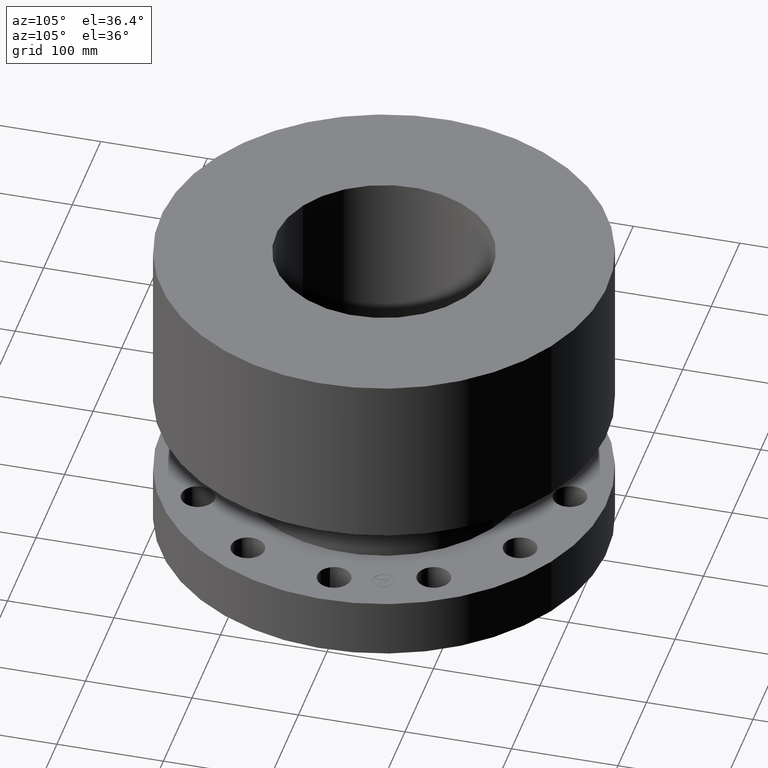
[diagram: clean part render]
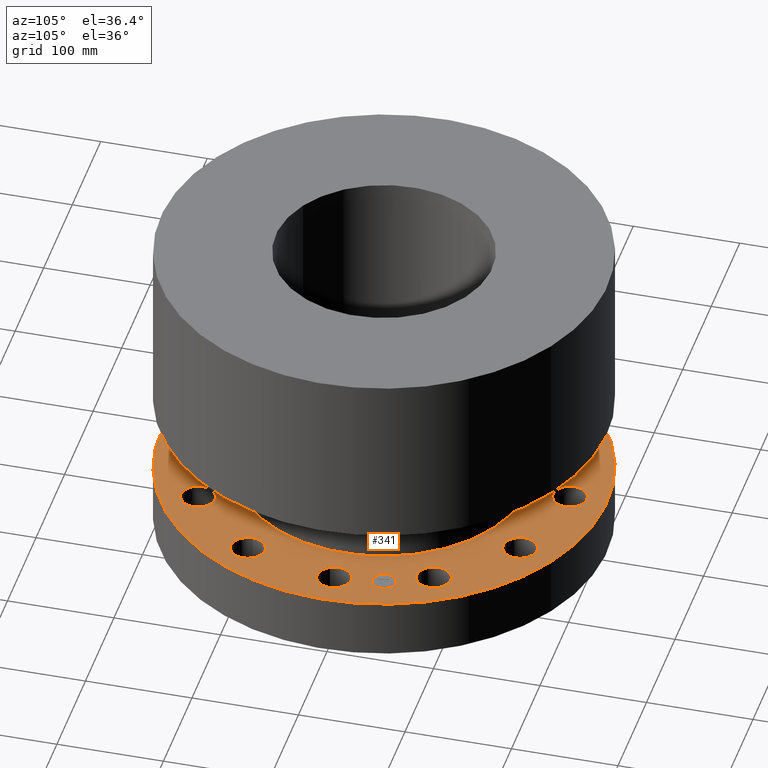
[diagram: same view with one face highlighted and labeled with its STEP entity id]
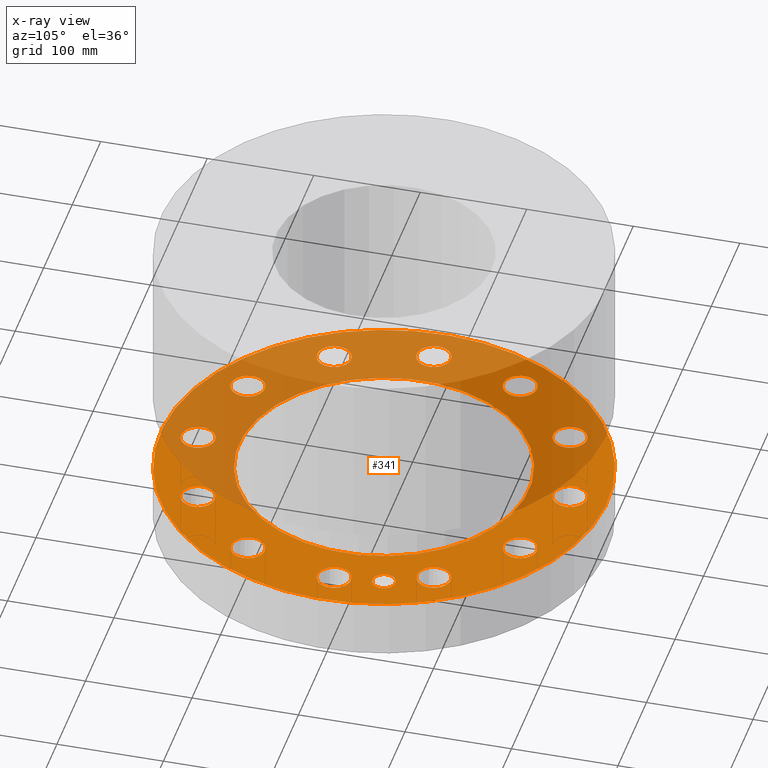
[diagram: x-ray of the same camera — body ghosted, the highlighted face saturated]
A machine part, auxiliary view. The second image highlights one B-rep face of the part: STEP entity #341.
The next image is the same camera in x-ray: the body ghosted, the highlighted face saturated — about 53% of this face is hidden behind the body in this view.
In plain terms, the highlighted planar face has unit normal (0, 0, -1).
Its self-contained STEP definition (entity closure, byte-faithful):
#65=AXIS2_PLACEMENT_3D('Circle Axis2P3D',#63,#64,$) ;
#78=AXIS2_PLACEMENT_3D('Plane Axis2P3D',#75,#76,#77) ;
#82=AXIS2_PLACEMENT_3D('Circle Axis2P3D',#80,#81,$) ;
#91=AXIS2_PLACEMENT_3D('Circle Axis2P3D',#89,#90,$) ;
#100=AXIS2_PLACEMENT_3D('Circle Axis2P3D',#98,#99,$) ;
#109=AXIS2_PLACEMENT_3D('Circle Axis2P3D',#107,#108,$) ;
#118=AXIS2_PLACEMENT_3D('Circle Axis2P3D',#116,#117,$) ;
#127=AXIS2_PLACEMENT_3D('Circle Axis2P3D',#125,#126,$) ;
#136=AXIS2_PLACEMENT_3D('Circle Axis2P3D',#134,#135,$) ;
#145=AXIS2_PLACEMENT_3D('Circle Axis2P3D',#143,#144,$) ;
#154=AXIS2_PLACEMENT_3D('Circle Axis2P3D',#152,#153,$) ;
#163=AXIS2_PLACEMENT_3D('Circle Axis2P3D',#161,#162,$) ;
#172=AXIS2_PLACEMENT_3D('Circle Axis2P3D',#170,#171,$) ;
#181=AXIS2_PLACEMENT_3D('Circle Axis2P3D',#179,#180,$) ;
#190=AXIS2_PLACEMENT_3D('Circle Axis2P3D',#188,#189,$) ;
#199=AXIS2_PLACEMENT_3D('Circle Axis2P3D',#197,#198,$) ;
#208=AXIS2_PLACEMENT_3D('Circle Axis2P3D',#206,#207,$) ;
#217=AXIS2_PLACEMENT_3D('Circle Axis2P3D',#215,#216,$) ;
#226=AXIS2_PLACEMENT_3D('Circle Axis2P3D',#224,#225,$) ;
#235=AXIS2_PLACEMENT_3D('Circle Axis2P3D',#233,#234,$) ;
#244=AXIS2_PLACEMENT_3D('Circle Axis2P3D',#242,#243,$) ;
#253=AXIS2_PLACEMENT_3D('Circle Axis2P3D',#251,#252,$) ;
#262=AXIS2_PLACEMENT_3D('Circle Axis2P3D',#260,#261,$) ;
#271=AXIS2_PLACEMENT_3D('Circle Axis2P3D',#269,#270,$) ;
#280=AXIS2_PLACEMENT_3D('Circle Axis2P3D',#278,#279,$) ;
#289=AXIS2_PLACEMENT_3D('Circle Axis2P3D',#287,#288,$) ;
#298=AXIS2_PLACEMENT_3D('Circle Axis2P3D',#296,#297,$) ;
#307=AXIS2_PLACEMENT_3D('Circle Axis2P3D',#305,#306,$) ;
#316=AXIS2_PLACEMENT_3D('Circle Axis2P3D',#314,#315,$) ;
#325=AXIS2_PLACEMENT_3D('Circle Axis2P3D',#323,#324,$) ;
#334=AXIS2_PLACEMENT_3D('Circle Axis2P3D',#332,#333,$) ;
#44=CARTESIAN_POINT('Vertex',(7.42348910121,0.299640961629,2.19000000001)) ;
#60=CARTESIAN_POINT('Vertex',(6.32651089884,-0.299640961629,2.19000000001)) ;
#63=CARTESIAN_POINT('Axis2P3D Location',(6.87500000003,0.,2.19000000001)) ;
#75=CARTESIAN_POINT('Axis2P3D Location',(0.,8.25000000003,2.19000000001)) ;
#80=CARTESIAN_POINT('Axis2P3D Location',(0.,0.,2.19000000001)) ;
#84=CARTESIAN_POINT('Vertex',(3.9552606935,7.24005613562,2.19000000001)) ;
#86=CARTESIAN_POINT('Vertex',(-3.9552606935,-7.24005613562,2.19000000001)) ;
#89=CARTESIAN_POINT('Axis2P3D Location',(0.,0.,2.19000000001)) ;
#98=CARTESIAN_POINT('Axis2P3D Location',(6.87500000003,0.,2.19000000001)) ;
#107=CARTESIAN_POINT('Axis2P3D Location',(0.,0.,2.19000000001)) ;
#111=CARTESIAN_POINT('Vertex',(-2.56972088693,-4.70384253175,2.19000000001)) ;
#113=CARTESIAN_POINT('Vertex',(2.56972088693,4.70384253175,2.19000000001)) ;
#116=CARTESIAN_POINT('Axis2P3D Location',(0.,0.,2.19000000001)) ;
#125=CARTESIAN_POINT('Axis2P3D Location',(5.95392465104,-3.43750000001,2.19000000001)) ;
#129=CARTESIAN_POINT('Vertex',(5.3290986749,-3.42275213421,2.19000000001)) ;
#131=CARTESIAN_POINT('Vertex',(6.57875062718,-3.45224786582,2.19000000001)) ;
#134=CARTESIAN_POINT('Axis2P3D Location',(5.95392465104,-3.43750000001,2.19000000001)) ;
#143=CARTESIAN_POINT('Axis2P3D Location',(3.43750000001,-5.95392465104,2.19000000001)) ;
#147=CARTESIAN_POINT('Vertex',(2.90375876464,-5.62873963653,2.19000000001)) ;
#149=CARTESIAN_POINT('Vertex',(3.97124123539,-6.27910966555,2.19000000001)) ;
#152=CARTESIAN_POINT('Axis2P3D Location',(3.43750000001,-5.95392465104,2.19000000001)) ;
#161=CARTESIAN_POINT('Axis2P3D Location',(-9.79094320929E-016,-6.87500000003,2.19000000001)) ;
#165=CARTESIAN_POINT('Vertex',(-0.299640961629,-6.32651089884,2.19000000001)) ;
#167=CARTESIAN_POINT('Vertex',(0.299640961629,-7.42348910121,2.19000000001)) ;
#170=CARTESIAN_POINT('Axis2P3D Location',(-6.99353086378E-016,-6.87500000003,2.19000000001)) ;
#179=CARTESIAN_POINT('Axis2P3D Location',(-3.43750000001,-5.95392465104,2.19000000001)) ;
#183=CARTESIAN_POINT('Vertex',(-3.42275213421,-5.3290986749,2.19000000001)) ;
#185=CARTESIAN_POINT('Vertex',(-3.45224786582,-6.57875062718,2.19000000001)) ;
#188=CARTESIAN_POINT('Axis2P3D Location',(-3.43750000001,-5.95392465104,2.19000000001)) ;
#197=CARTESIAN_POINT('Axis2P3D Location',(-5.95392465104,-3.43750000001,2.19000000001)) ;
#201=CARTESIAN_POINT('Vertex',(-5.62873963653,-2.90375876464,2.19000000001)) ;
#203=CARTESIAN_POINT('Vertex',(-6.27910966555,-3.97124123539,2.19000000001)) ;
#206=CARTESIAN_POINT('Axis2P3D Location',(-5.95392465104,-3.43750000001,2.19000000001)) ;
#215=CARTESIAN_POINT('Axis2P3D Location',(-6.87500000003,-1.1189649382E-015,2.19000000001)) ;
#219=CARTESIAN_POINT('Vertex',(-6.32651089884,0.299640961629,2.19000000001)) ;
#221=CARTESIAN_POINT('Vertex',(-7.42348910121,-0.299640961629,2.19000000001)) ;
#224=CARTESIAN_POINT('Axis2P3D Location',(-6.87500000003,0.,2.19000000001)) ;
#233=CARTESIAN_POINT('Axis2P3D Location',(-5.95392465104,3.43750000001,2.19000000001)) ;
#237=CARTESIAN_POINT('Vertex',(-5.3290986749,3.42275213421,2.19000000001)) ;
#239=CARTESIAN_POINT('Vertex',(-6.57875062718,3.45224786582,2.19000000001)) ;
#242=CARTESIAN_POINT('Axis2P3D Location',(-5.95392465104,3.43750000001,2.19000000001)) ;
#251=CARTESIAN_POINT('Axis2P3D Location',(-3.43750000001,5.95392465104,2.19000000001)) ;
#255=CARTESIAN_POINT('Vertex',(-2.90375876464,5.62873963653,2.19000000001)) ;
#257=CARTESIAN_POINT('Vertex',(-3.97124123539,6.27910966555,2.19000000001)) ;
#260=CARTESIAN_POINT('Axis2P3D Location',(-3.43750000001,5.95392465104,2.19000000001)) ;
#269=CARTESIAN_POINT('Axis2P3D Location',(-1.04902962957E-015,6.87500000003,2.19000000001)) ;
#273=CARTESIAN_POINT('Vertex',(0.299640961629,6.32651089884,2.19000000001)) ;
#275=CARTESIAN_POINT('Vertex',(-0.299640961629,7.42348910121,2.19000000001)) ;
#278=CARTESIAN_POINT('Axis2P3D Location',(-1.60851209867E-015,6.87500000003,2.19000000001)) ;
#287=CARTESIAN_POINT('Axis2P3D Location',(3.43750000001,5.95392465104,2.19000000001)) ;
#291=CARTESIAN_POINT('Vertex',(3.42275213421,5.3290986749,2.19000000001)) ;
#293=CARTESIAN_POINT('Vertex',(3.45224786582,6.57875062718,2.19000000001)) ;
#296=CARTESIAN_POINT('Axis2P3D Location',(3.43750000001,5.95392465104,2.19000000001)) ;
#305=CARTESIAN_POINT('Axis2P3D Location',(5.95392465104,3.43750000001,2.19000000001)) ;
#309=CARTESIAN_POINT('Vertex',(5.62873963653,2.90375876464,2.19000000001)) ;
#311=CARTESIAN_POINT('Vertex',(6.27910966555,3.97124123539,2.19000000001)) ;
#314=CARTESIAN_POINT('Axis2P3D Location',(5.95392465104,3.43750000001,2.19000000001)) ;
#323=CARTESIAN_POINT('Axis2P3D Location',(6.64074005576,1.77938093509,2.19000000001)) ;
#327=CARTESIAN_POINT('Vertex',(6.75073814883,1.36886246302,2.19000000001)) ;
#329=CARTESIAN_POINT('Vertex',(6.53074196269,2.18989940716,2.19000000001)) ;
#332=CARTESIAN_POINT('Axis2P3D Location',(6.64074005576,1.77938093509,2.19000000001)) ;
#64=DIRECTION('Axis2P3D Direction',(0.,-0.,0.0393700787402)) ;
#76=DIRECTION('Axis2P3D Direction',(0.,0.,-0.0393700787402)) ;
#77=DIRECTION('Axis2P3D XDirection',(0.0393700787402,0.,0.)) ;
#81=DIRECTION('Axis2P3D Direction',(0.,0.,-0.0393700787402)) ;
#90=DIRECTION('Axis2P3D Direction',(0.,0.,-0.0393700787402)) ;
#99=DIRECTION('Axis2P3D Direction',(0.,0.,-0.0393700787402)) ;
#108=DIRECTION('Axis2P3D Direction',(0.,0.,-0.0393700787402)) ;
#117=DIRECTION('Axis2P3D Direction',(0.,0.,-0.0393700787402)) ;
#126=DIRECTION('Axis2P3D Direction',(0.,0.,-0.0393700787402)) ;
#135=DIRECTION('Axis2P3D Direction',(0.,0.,-0.0393700787402)) ;
#144=DIRECTION('Axis2P3D Direction',(0.,0.,-0.0393700787402)) ;
#153=DIRECTION('Axis2P3D Direction',(0.,0.,-0.0393700787402)) ;
#162=DIRECTION('Axis2P3D Direction',(0.,0.,-0.0393700787402)) ;
#171=DIRECTION('Axis2P3D Direction',(0.,0.,-0.0393700787402)) ;
#180=DIRECTION('Axis2P3D Direction',(0.,0.,-0.0393700787402)) ;
#189=DIRECTION('Axis2P3D Direction',(0.,0.,-0.0393700787402)) ;
#198=DIRECTION('Axis2P3D Direction',(0.,0.,-0.0393700787402)) ;
#207=DIRECTION('Axis2P3D Direction',(0.,0.,-0.0393700787402)) ;
#216=DIRECTION('Axis2P3D Direction',(0.,0.,-0.0393700787402)) ;
#225=DIRECTION('Axis2P3D Direction',(0.,0.,-0.0393700787402)) ;
#234=DIRECTION('Axis2P3D Direction',(0.,0.,-0.0393700787402)) ;
#243=DIRECTION('Axis2P3D Direction',(0.,0.,-0.0393700787402)) ;
#252=DIRECTION('Axis2P3D Direction',(0.,0.,-0.0393700787402)) ;
#261=DIRECTION('Axis2P3D Direction',(0.,0.,-0.0393700787402)) ;
#270=DIRECTION('Axis2P3D Direction',(0.,0.,-0.0393700787402)) ;
#279=DIRECTION('Axis2P3D Direction',(0.,0.,-0.0393700787402)) ;
#288=DIRECTION('Axis2P3D Direction',(0.,0.,-0.0393700787402)) ;
#297=DIRECTION('Axis2P3D Direction',(0.,0.,-0.0393700787402)) ;
#306=DIRECTION('Axis2P3D Direction',(0.,0.,-0.0393700787402)) ;
#315=DIRECTION('Axis2P3D Direction',(0.,0.,-0.0393700787402)) ;
#324=DIRECTION('Axis2P3D Direction',(0.,0.,-0.0393700787402)) ;
#333=DIRECTION('Axis2P3D Direction',(0.,0.,-0.0393700787402)) ;
#95=ORIENTED_EDGE('',*,*,#88,.F.) ;
#96=ORIENTED_EDGE('',*,*,#93,.F.) ;
#104=ORIENTED_EDGE('',*,*,#67,.T.) ;
#105=ORIENTED_EDGE('',*,*,#102,.T.) ;
#122=ORIENTED_EDGE('',*,*,#115,.T.) ;
#123=ORIENTED_EDGE('',*,*,#120,.T.) ;
#140=ORIENTED_EDGE('',*,*,#133,.T.) ;
#141=ORIENTED_EDGE('',*,*,#138,.T.) ;
#158=ORIENTED_EDGE('',*,*,#151,.T.) ;
#159=ORIENTED_EDGE('',*,*,#156,.T.) ;
#176=ORIENTED_EDGE('',*,*,#169,.T.) ;
#177=ORIENTED_EDGE('',*,*,#174,.T.) ;
#194=ORIENTED_EDGE('',*,*,#187,.T.) ;
#195=ORIENTED_EDGE('',*,*,#192,.T.) ;
#212=ORIENTED_EDGE('',*,*,#205,.T.) ;
#213=ORIENTED_EDGE('',*,*,#210,.T.) ;
#230=ORIENTED_EDGE('',*,*,#223,.T.) ;
#231=ORIENTED_EDGE('',*,*,#228,.T.) ;
#248=ORIENTED_EDGE('',*,*,#241,.T.) ;
#249=ORIENTED_EDGE('',*,*,#246,.T.) ;
#266=ORIENTED_EDGE('',*,*,#259,.T.) ;
#267=ORIENTED_EDGE('',*,*,#264,.T.) ;
#284=ORIENTED_EDGE('',*,*,#277,.T.) ;
#285=ORIENTED_EDGE('',*,*,#282,.T.) ;
#302=ORIENTED_EDGE('',*,*,#295,.T.) ;
#303=ORIENTED_EDGE('',*,*,#300,.T.) ;
#320=ORIENTED_EDGE('',*,*,#313,.T.) ;
#321=ORIENTED_EDGE('',*,*,#318,.T.) ;
#338=ORIENTED_EDGE('',*,*,#331,.F.) ;
#339=ORIENTED_EDGE('',*,*,#336,.F.) ;
#106=FACE_BOUND('',#103,.T.) ;
#124=FACE_BOUND('',#121,.T.) ;
#142=FACE_BOUND('',#139,.T.) ;
#160=FACE_BOUND('',#157,.T.) ;
#178=FACE_BOUND('',#175,.T.) ;
#196=FACE_BOUND('',#193,.T.) ;
#214=FACE_BOUND('',#211,.T.) ;
#232=FACE_BOUND('',#229,.T.) ;
#250=FACE_BOUND('',#247,.T.) ;
#268=FACE_BOUND('',#265,.T.) ;
#286=FACE_BOUND('',#283,.T.) ;
#304=FACE_BOUND('',#301,.T.) ;
#322=FACE_BOUND('',#319,.T.) ;
#340=FACE_BOUND('',#337,.T.) ;
#341=ADVANCED_FACE('PartBody',(#97,#106,#124,#142,#160,#178,#196,#214,#232,#250,#268,#286,#304,#322,#340),#79,.F.) ;
#66=CIRCLE('generated circle',#65,0.625000000002) ;
#83=CIRCLE('generated circle',#82,8.25000000003) ;
#92=CIRCLE('generated circle',#91,8.25000000003) ;
#101=CIRCLE('generated circle',#100,0.625000000002) ;
#110=CIRCLE('generated circle',#109,5.36000000002) ;
#119=CIRCLE('generated circle',#118,5.36000000002) ;
#128=CIRCLE('generated circle',#127,0.625000000002) ;
#137=CIRCLE('generated circle',#136,0.625000000002) ;
#146=CIRCLE('generated circle',#145,0.625000000002) ;
#155=CIRCLE('generated circle',#154,0.625000000002) ;
#164=CIRCLE('generated circle',#163,0.625000000003) ;
#173=CIRCLE('generated circle',#172,0.625000000002) ;
#182=CIRCLE('generated circle',#181,0.625000000002) ;
#191=CIRCLE('generated circle',#190,0.625000000002) ;
#200=CIRCLE('generated circle',#199,0.625000000002) ;
#209=CIRCLE('generated circle',#208,0.625000000002) ;
#218=CIRCLE('generated circle',#217,0.625000000002) ;
#227=CIRCLE('generated circle',#226,0.625000000002) ;
#236=CIRCLE('generated circle',#235,0.625000000002) ;
#245=CIRCLE('generated circle',#244,0.625000000002) ;
#254=CIRCLE('generated circle',#253,0.625000000003) ;
#263=CIRCLE('generated circle',#262,0.625000000003) ;
#272=CIRCLE('generated circle',#271,0.625000000003) ;
#281=CIRCLE('generated circle',#280,0.625000000002) ;
#290=CIRCLE('generated circle',#289,0.625000000002) ;
#299=CIRCLE('generated circle',#298,0.625000000002) ;
#308=CIRCLE('generated circle',#307,0.625000000003) ;
#317=CIRCLE('generated circle',#316,0.625000000003) ;
#326=CIRCLE('generated circle',#325,0.424999995752) ;
#335=CIRCLE('generated circle',#334,0.424999995752) ;
#67=EDGE_CURVE('',#45,#61,#66,.F.) ;
#88=EDGE_CURVE('',#85,#87,#83,.T.) ;
#93=EDGE_CURVE('',#87,#85,#92,.T.) ;
#102=EDGE_CURVE('',#61,#45,#101,.T.) ;
#115=EDGE_CURVE('',#112,#114,#110,.T.) ;
#120=EDGE_CURVE('',#114,#112,#119,.T.) ;
#133=EDGE_CURVE('',#130,#132,#128,.T.) ;
#138=EDGE_CURVE('',#132,#130,#137,.T.) ;
#151=EDGE_CURVE('',#148,#150,#146,.T.) ;
#156=EDGE_CURVE('',#150,#148,#155,.T.) ;
#169=EDGE_CURVE('',#166,#168,#164,.T.) ;
#174=EDGE_CURVE('',#168,#166,#173,.T.) ;
#187=EDGE_CURVE('',#184,#186,#182,.T.) ;
#192=EDGE_CURVE('',#186,#184,#191,.T.) ;
#205=EDGE_CURVE('',#202,#204,#200,.T.) ;
#210=EDGE_CURVE('',#204,#202,#209,.T.) ;
#223=EDGE_CURVE('',#220,#222,#218,.T.) ;
#228=EDGE_CURVE('',#222,#220,#227,.T.) ;
#241=EDGE_CURVE('',#238,#240,#236,.T.) ;
#246=EDGE_CURVE('',#240,#238,#245,.T.) ;
#259=EDGE_CURVE('',#256,#258,#254,.T.) ;
#264=EDGE_CURVE('',#258,#256,#263,.T.) ;
#277=EDGE_CURVE('',#274,#276,#272,.T.) ;
#282=EDGE_CURVE('',#276,#274,#281,.T.) ;
#295=EDGE_CURVE('',#292,#294,#290,.T.) ;
#300=EDGE_CURVE('',#294,#292,#299,.T.) ;
#313=EDGE_CURVE('',#310,#312,#308,.T.) ;
#318=EDGE_CURVE('',#312,#310,#317,.T.) ;
#331=EDGE_CURVE('',#328,#330,#326,.F.) ;
#336=EDGE_CURVE('',#330,#328,#335,.F.) ;
#94=EDGE_LOOP('',(#95,#96)) ;
#103=EDGE_LOOP('',(#104,#105)) ;
#121=EDGE_LOOP('',(#122,#123)) ;
#139=EDGE_LOOP('',(#140,#141)) ;
#157=EDGE_LOOP('',(#158,#159)) ;
#175=EDGE_LOOP('',(#176,#177)) ;
#193=EDGE_LOOP('',(#194,#195)) ;
#211=EDGE_LOOP('',(#212,#213)) ;
#229=EDGE_LOOP('',(#230,#231)) ;
#247=EDGE_LOOP('',(#248,#249)) ;
#265=EDGE_LOOP('',(#266,#267)) ;
#283=EDGE_LOOP('',(#284,#285)) ;
#301=EDGE_LOOP('',(#302,#303)) ;
#319=EDGE_LOOP('',(#320,#321)) ;
#337=EDGE_LOOP('',(#338,#339)) ;
#97=FACE_OUTER_BOUND('',#94,.T.) ;
#79=PLANE('',#78) ;
#45=VERTEX_POINT('',#44) ;
#61=VERTEX_POINT('',#60) ;
#85=VERTEX_POINT('',#84) ;
#87=VERTEX_POINT('',#86) ;
#112=VERTEX_POINT('',#111) ;
#114=VERTEX_POINT('',#113) ;
#130=VERTEX_POINT('',#129) ;
#132=VERTEX_POINT('',#131) ;
#148=VERTEX_POINT('',#147) ;
#150=VERTEX_POINT('',#149) ;
#166=VERTEX_POINT('',#165) ;
#168=VERTEX_POINT('',#167) ;
#184=VERTEX_POINT('',#183) ;
#186=VERTEX_POINT('',#185) ;
#202=VERTEX_POINT('',#201) ;
#204=VERTEX_POINT('',#203) ;
#220=VERTEX_POINT('',#219) ;
#222=VERTEX_POINT('',#221) ;
#238=VERTEX_POINT('',#237) ;
#240=VERTEX_POINT('',#239) ;
#256=VERTEX_POINT('',#255) ;
#258=VERTEX_POINT('',#257) ;
#274=VERTEX_POINT('',#273) ;
#276=VERTEX_POINT('',#275) ;
#292=VERTEX_POINT('',#291) ;
#294=VERTEX_POINT('',#293) ;
#310=VERTEX_POINT('',#309) ;
#312=VERTEX_POINT('',#311) ;
#328=VERTEX_POINT('',#327) ;
#330=VERTEX_POINT('',#329) ;